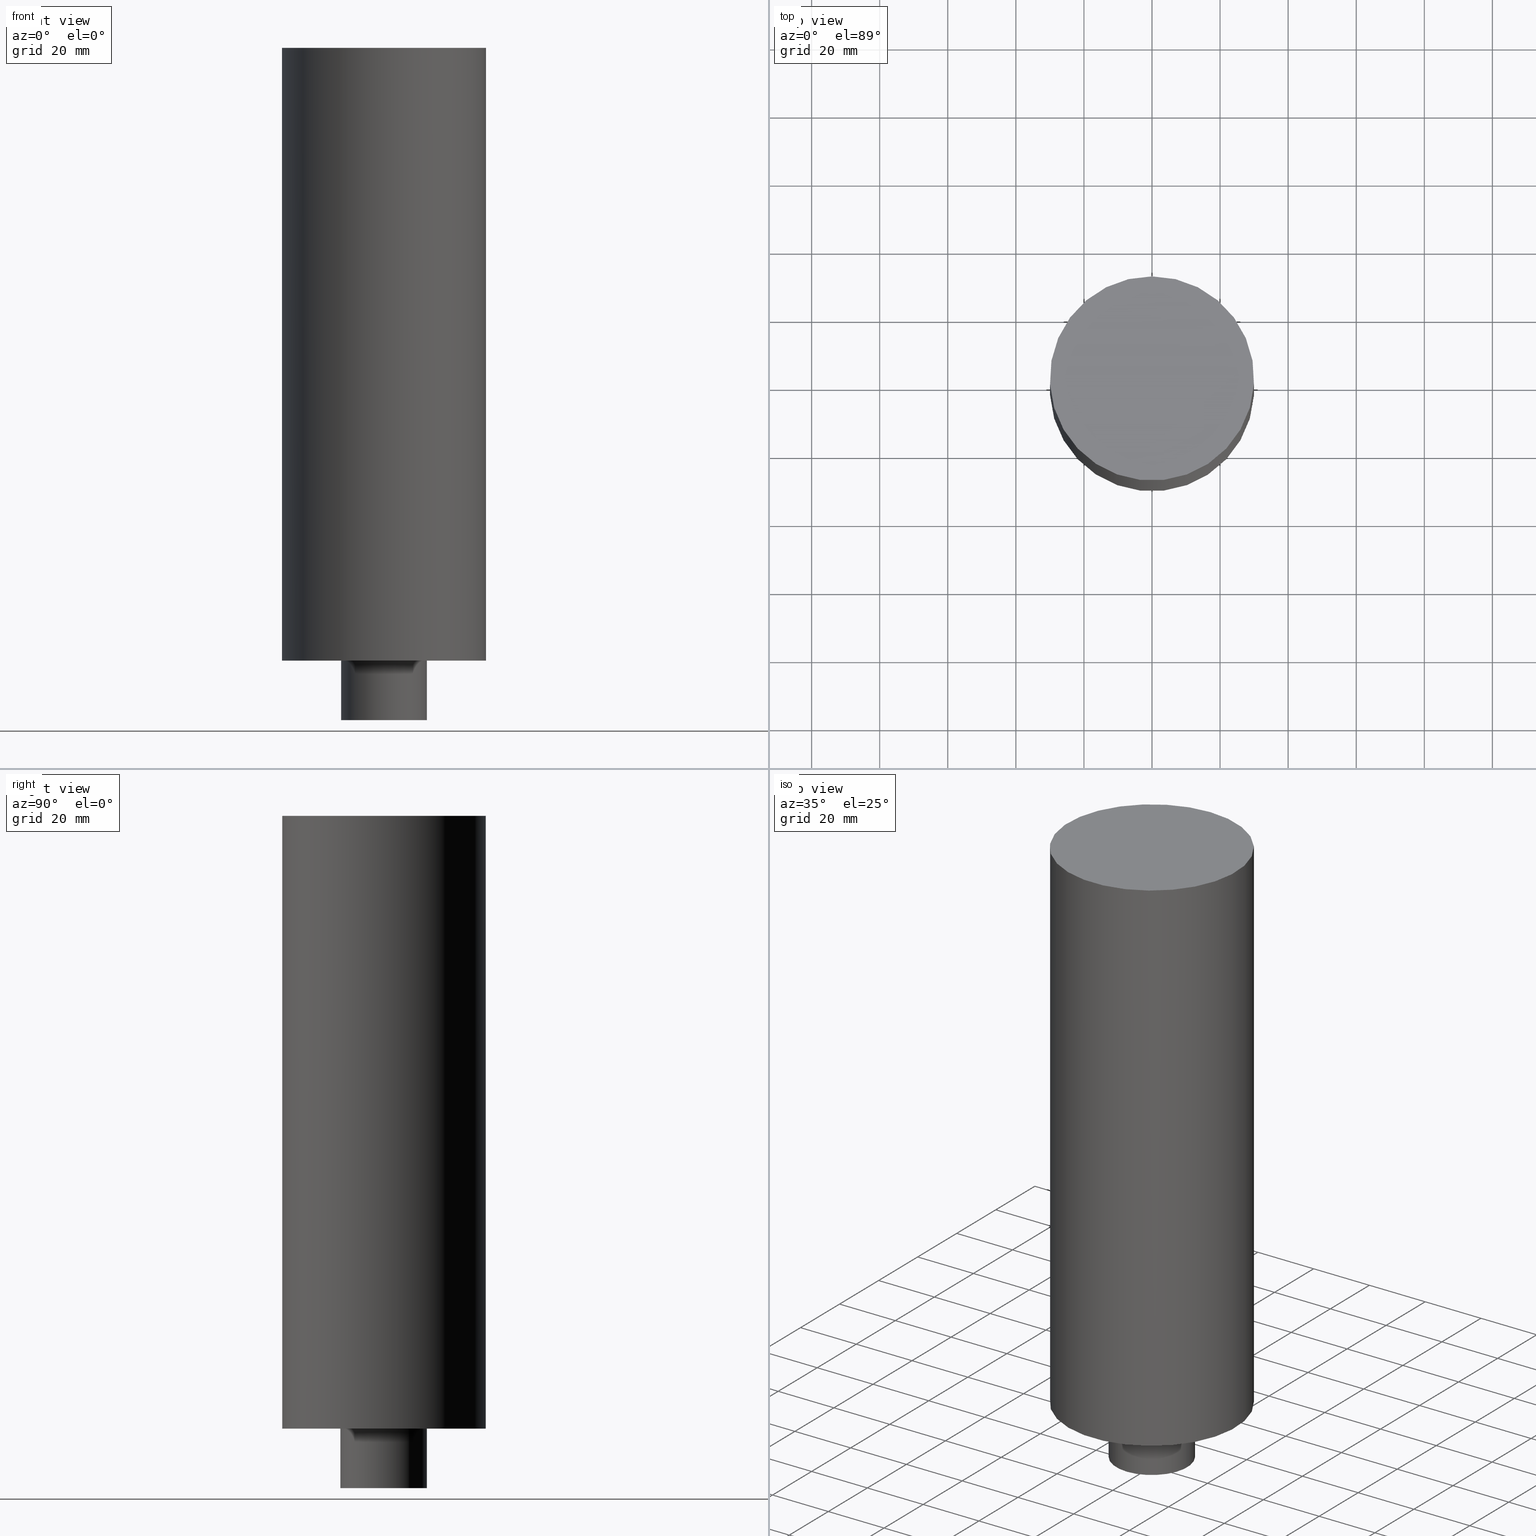
[diagram: canonical four-view strip — front | top / right | iso, engineering-drawing reading convention]
A machine part, canonical four-view strip (front | top / right | iso — engineering-drawing reading convention). The complete STEP part file that produces these views, byte-faithful:
ISO-10303-21;
HEADER;
FILE_DESCRIPTION((''),'1');
FILE_NAME('V:/90_\X2\53D65F9730C730FC30BF\X0\/00_\X2\6DE18DEF30C730FC30BF\X0\/ALL/BCV-BKUS\X2\FF76FF80FF9BFF78FF9E752852A05DE556F3\X0\201801/BCV50-SDF/SDF36-SMC1.000DP-60-180.stp','2018-02-01T01:30:07',(''),(''),'Spatial Interop R21 SP3','Kubotek KeyCreator 2011 V10.0.2 (22737)',' ');
FILE_SCHEMA(('automotive_design'));
ENDSEC;
DATA;
#1=MECHANICAL_DESIGN_GEOMETRIC_PRESENTATION_REPRESENTATION(' ',(#10,#11,#12,#13,#14,#15,#16,#17,#18,#19),#6);
#2=PRODUCT_DEFINITION_CONTEXT('',#20,'design');
#3=APPLICATION_PROTOCOL_DEFINITION('INTERNATIONAL STANDARD','automotive_design',1994,#20);
#4=PRODUCT_CATEGORY_RELATIONSHIP('NONE','NONE',#21,#22);
#5=SHAPE_DEFINITION_REPRESENTATION(#23,#24);
#6= (GEOMETRIC_REPRESENTATION_CONTEXT(3)GLOBAL_UNCERTAINTY_ASSIGNED_CONTEXT((#27))GLOBAL_UNIT_ASSIGNED_CONTEXT((#29,#30,#31))REPRESENTATION_CONTEXT('NONE','WORKSPACE'));
#10=STYLED_ITEM('',(#33,#34),#35);
#11=STYLED_ITEM('',(#36,#37),#38);
#12=STYLED_ITEM('',(#39,#40),#41);
#13=STYLED_ITEM('',(#42),#43);
#14=STYLED_ITEM('',(#44),#45);
#15=STYLED_ITEM('',(#46),#47);
#16=STYLED_ITEM('',(#48,#49),#50);
#17=STYLED_ITEM('',(#51),#52);
#18=STYLED_ITEM('',(#53,#54),#55);
#19=STYLED_ITEM('',(#56,#57),#58);
#20=APPLICATION_CONTEXT(' ');
#21=PRODUCT_CATEGORY('part','NONE');
#22=PRODUCT_RELATED_PRODUCT_CATEGORY('detail',' ',(#59));
#23=PRODUCT_DEFINITION_SHAPE('NONE','NONE',#60);
#24=ADVANCED_BREP_SHAPE_REPRESENTATION('Unnamed[1]',(#58,#61),#6);
#27=UNCERTAINTY_MEASURE_WITH_UNIT(LENGTH_MEASURE(1.0E-006),#29,'','');
#29= (CONVERSION_BASED_UNIT('MILLIMETRE',#64)LENGTH_UNIT()NAMED_UNIT(#67));
#30= (NAMED_UNIT(#69)PLANE_ANGLE_UNIT()SI_UNIT($,.RADIAN.));
#31= (NAMED_UNIT(#69)SOLID_ANGLE_UNIT()SI_UNIT($,.STERADIAN.));
#33=PRESENTATION_STYLE_ASSIGNMENT((#75));
#34=PRESENTATION_STYLE_ASSIGNMENT((#76));
#35=ADVANCED_FACE('Unnamed[1]',(#77),#78,.T.);
#36=PRESENTATION_STYLE_ASSIGNMENT((#79));
#37=PRESENTATION_STYLE_ASSIGNMENT((#80));
#38=ADVANCED_FACE('Unnamed[1]',(#81),#82,.T.);
#39=PRESENTATION_STYLE_ASSIGNMENT((#83));
#40=PRESENTATION_STYLE_ASSIGNMENT((#84));
#41=ADVANCED_FACE('Unnamed[1]',(#85,#86),#87,.T.);
#42=PRESENTATION_STYLE_ASSIGNMENT((#88));
#43=EDGE_CURVE('Unnamed[1]',#89,#89,#90,.T.);
#44=PRESENTATION_STYLE_ASSIGNMENT((#91));
#45=EDGE_CURVE('Unnamed[1]',#92,#92,#93,.T.);
#46=PRESENTATION_STYLE_ASSIGNMENT((#94));
#47=EDGE_CURVE('Unnamed[1]',#95,#95,#96,.T.);
#48=PRESENTATION_STYLE_ASSIGNMENT((#97));
#49=PRESENTATION_STYLE_ASSIGNMENT((#98));
#50=ADVANCED_FACE('Unnamed[1]',(#99,#100),#101,.T.);
#51=PRESENTATION_STYLE_ASSIGNMENT((#102));
#52=EDGE_CURVE('Unnamed[1]',#103,#103,#104,.T.);
#53=PRESENTATION_STYLE_ASSIGNMENT((#105));
#54=PRESENTATION_STYLE_ASSIGNMENT((#106));
#55=ADVANCED_FACE('Unnamed[1]',(#107,#108),#109,.T.);
#56=PRESENTATION_STYLE_ASSIGNMENT((#110));
#57=PRESENTATION_STYLE_ASSIGNMENT((#111));
#58=MANIFOLD_SOLID_BREP('Unnamed[1]',#112);
#59=PRODUCT('Unnamed[1]','Unnamed[1]','PART-Unnamed[1]-DESC',(#113));
#60=PRODUCT_DEFINITION('NONE','NONE',#114,#2);
#61=AXIS2_PLACEMENT_3D('',#115,#116,#117);
#64=LENGTH_MEASURE_WITH_UNIT(LENGTH_MEASURE(1.0),#118);
#67=DIMENSIONAL_EXPONENTS(1.0,0.0,0.0,0.0,0.0,0.0,0.0);
#69=DIMENSIONAL_EXPONENTS(0.0,0.0,0.0,0.0,0.0,0.0,0.0);
#75=SURFACE_STYLE_USAGE(.BOTH.,#119);
#76=CURVE_STYLE('',#120,POSITIVE_LENGTH_MEASURE(1000.0),#121);
#77=FACE_OUTER_BOUND('',#122,.T.);
#78=PLANE('',#123);
#79=SURFACE_STYLE_USAGE(.BOTH.,#124);
#80=CURVE_STYLE('',#125,POSITIVE_LENGTH_MEASURE(1000.0),#126);
#81=FACE_OUTER_BOUND('',#127,.T.);
#82=PLANE('',#128);
#83=SURFACE_STYLE_USAGE(.BOTH.,#129);
#84=CURVE_STYLE('',#130,POSITIVE_LENGTH_MEASURE(1000.0),#131);
#85=FACE_BOUND('',#132,.T.);
#86=FACE_BOUND('',#133,.T.);
#87=CYLINDRICAL_SURFACE('',#134,12.7);
#88=CURVE_STYLE('',#135,POSITIVE_LENGTH_MEASURE(1000.0),#136);
#89=VERTEX_POINT('',#137);
#90=CIRCLE('',#138,30.0);
#91=CURVE_STYLE('',#139,POSITIVE_LENGTH_MEASURE(1000.0),#140);
#92=VERTEX_POINT('',#141);
#93=CIRCLE('',#142,12.7);
#94=CURVE_STYLE('',#143,POSITIVE_LENGTH_MEASURE(1000.0),#144);
#95=VERTEX_POINT('',#145);
#96=CIRCLE('',#146,30.0);
#97=SURFACE_STYLE_USAGE(.BOTH.,#147);
#98=CURVE_STYLE('',#148,POSITIVE_LENGTH_MEASURE(1000.0),#149);
#99=FACE_BOUND('',#150,.T.);
#100=FACE_BOUND('',#151,.T.);
#101=CYLINDRICAL_SURFACE('',#152,30.0);
#102=CURVE_STYLE('',#153,POSITIVE_LENGTH_MEASURE(1000.0),#154);
#103=VERTEX_POINT('',#155);
#104=CIRCLE('',#156,12.7);
#105=SURFACE_STYLE_USAGE(.BOTH.,#157);
#106=CURVE_STYLE('',#158,POSITIVE_LENGTH_MEASURE(1000.0),#159);
#107=FACE_OUTER_BOUND('',#160,.T.);
#108=FACE_BOUND('',#161,.T.);
#109=PLANE('',#162);
#110=SURFACE_STYLE_USAGE(.BOTH.,#163);
#111=CURVE_STYLE('',#164,POSITIVE_LENGTH_MEASURE(1000.0),#165);
#112=CLOSED_SHELL('',(#38,#41,#55,#50,#35));
#113=PRODUCT_CONTEXT('',#20,'mechanical');
#114=PRODUCT_DEFINITION_FORMATION_WITH_SPECIFIED_SOURCE(' ','NONE',#59,.NOT_KNOWN.);
#115=CARTESIAN_POINT('',(0.0,0.0,0.0));
#116=DIRECTION('',(0.0,0.0,1.0));
#117=DIRECTION('',(1.0,0.0,0.0));
#118= (NAMED_UNIT(#67)LENGTH_UNIT()SI_UNIT(.MILLI.,.METRE.));
#119=SURFACE_SIDE_STYLE('',(#167));
#120=DRAUGHTING_PRE_DEFINED_CURVE_FONT('continuous');
#121=COLOUR_RGB('',0.0,1.0,0.0);
#122=EDGE_LOOP('',(#168));
#123=AXIS2_PLACEMENT_3D('',#169,#170,#171);
#124=SURFACE_SIDE_STYLE('',(#172));
#125=DRAUGHTING_PRE_DEFINED_CURVE_FONT('continuous');
#126=COLOUR_RGB('',0.0,1.0,0.0);
#127=EDGE_LOOP('',(#173));
#128=AXIS2_PLACEMENT_3D('',#174,#175,#176);
#129=SURFACE_SIDE_STYLE('',(#177));
#130=DRAUGHTING_PRE_DEFINED_CURVE_FONT('continuous');
#131=COLOUR_RGB('',0.0,1.0,0.0);
#132=EDGE_LOOP('',(#178));
#133=EDGE_LOOP('',(#179));
#134=AXIS2_PLACEMENT_3D('',#180,#181,#182);
#135=DRAUGHTING_PRE_DEFINED_CURVE_FONT('continuous');
#136=COLOUR_RGB('',0.0,1.0,0.0);
#137=CARTESIAN_POINT('',(1.37054922468967E-030,30.0,-2.47477690329619E-014));
#138=AXIS2_PLACEMENT_3D('',#183,#184,#185);
#139=DRAUGHTING_PRE_DEFINED_CURVE_FONT('continuous');
#140=COLOUR_RGB('',0.0,1.0,0.0);
#141=CARTESIAN_POINT('',(1.20933871415801E-014,12.7,-197.5));
#142=AXIS2_PLACEMENT_3D('',#186,#187,#188);
#143=DRAUGHTING_PRE_DEFINED_CURVE_FONT('continuous');
#144=COLOUR_RGB('',0.0,1.0,0.0);
#145=CARTESIAN_POINT('',(1.10218211923262E-014,30.0,-180.000000000001));
#146=AXIS2_PLACEMENT_3D('',#189,#190,#191);
#147=SURFACE_SIDE_STYLE('',(#192));
#148=DRAUGHTING_PRE_DEFINED_CURVE_FONT('continuous');
#149=COLOUR_RGB('',0.0,1.0,0.0);
#150=EDGE_LOOP('',(#193));
#151=EDGE_LOOP('',(#194));
#152=AXIS2_PLACEMENT_3D('',#195,#196,#197);
#153=DRAUGHTING_PRE_DEFINED_CURVE_FONT('continuous');
#154=COLOUR_RGB('',0.0,1.0,0.0);
#155=CARTESIAN_POINT('',(1.10218211923262E-014,12.7,-180.0));
#156=AXIS2_PLACEMENT_3D('',#198,#199,#200);
#157=SURFACE_SIDE_STYLE('',(#201));
#158=DRAUGHTING_PRE_DEFINED_CURVE_FONT('continuous');
#159=COLOUR_RGB('',0.0,1.0,0.0);
#160=EDGE_LOOP('',(#202));
#161=EDGE_LOOP('',(#203));
#162=AXIS2_PLACEMENT_3D('',#204,#205,#206);
#163=SURFACE_SIDE_STYLE('',(#207));
#164=DRAUGHTING_PRE_DEFINED_CURVE_FONT('continuous');
#165=COLOUR_RGB('',0.0,1.0,0.0);
#167=SURFACE_STYLE_FILL_AREA(#208);
#168=ORIENTED_EDGE('',*,*,#43,.T.);
#169=CARTESIAN_POINT('',(1.3373990328908E-030,15.0,-2.3023884516481E-014));
#170=DIRECTION('',(-6.12323399573677E-017,1.14925634432065E-016,1.0));
#171=DIRECTION('',(2.21001278659132E-033,1.0,-1.14925634432065E-016));
#172=SURFACE_STYLE_FILL_AREA(#209);
#173=ORIENTED_EDGE('',*,*,#45,.F.);
#174=CARTESIAN_POINT('',(1.20933871415801E-014,6.35000000000002,-197.5));
#175=DIRECTION('',(6.12323399573677E-017,1.22464679914735E-016,-1.0));
#176=DIRECTION('',(1.23259516440783E-032,-1.0,-1.22464679914735E-016));
#177=SURFACE_STYLE_FILL_AREA(#210);
#178=ORIENTED_EDGE('',*,*,#52,.F.);
#179=ORIENTED_EDGE('',*,*,#45,.T.);
#180=CARTESIAN_POINT('',(1.15576041669532E-014,2.31152083339063E-014,-188.75));
#181=DIRECTION('',(-6.12323399573677E-017,-1.2246467991474E-016,1.0));
#182=DIRECTION('',(-1.2325951644079E-032,1.0,1.2246467991474E-016));
#183=CARTESIAN_POINT('',(1.74032777401202E-030,3.48065554802404E-030,-2.8421709430404E-014));
#184=DIRECTION('',(-6.12323399573677E-017,-1.22464679914747E-016,1.0));
#185=DIRECTION('',(-1.23259516440783E-032,1.0,1.22464679914747E-016));
#186=CARTESIAN_POINT('',(1.20933871415801E-014,2.41867742831602E-014,-197.5));
#187=DIRECTION('',(-6.12323399573677E-017,-1.2246467991474E-016,1.0));
#188=DIRECTION('',(-1.2325951644079E-032,1.0,1.2246467991474E-016));
#189=CARTESIAN_POINT('',(1.10218211923262E-014,2.20436423846524E-014,-180.000000000001));
#190=DIRECTION('',(-6.12323399573677E-017,-1.22464679914747E-016,1.0));
#191=DIRECTION('',(-1.23259516440783E-032,1.0,1.22464679914747E-016));
#192=SURFACE_STYLE_FILL_AREA(#211);
#193=ORIENTED_EDGE('',*,*,#43,.F.);
#194=ORIENTED_EDGE('',*,*,#47,.T.);
#195=CARTESIAN_POINT('',(5.51091059616311E-015,1.10218211923262E-014,-90.0000000000003));
#196=DIRECTION('',(-6.12323399573677E-017,-1.22464679914747E-016,1.0));
#197=DIRECTION('',(-1.23259516440783E-032,1.0,1.22464679914747E-016));
#198=CARTESIAN_POINT('',(1.10218211923262E-014,2.20436423846524E-014,-180.0));
#199=DIRECTION('',(-6.12323399573677E-017,-1.2246467991474E-016,1.0));
#200=DIRECTION('',(-1.2325951644079E-032,1.0,1.2246467991474E-016));
#201=SURFACE_STYLE_FILL_AREA(#212);
#202=ORIENTED_EDGE('',*,*,#47,.F.);
#203=ORIENTED_EDGE('',*,*,#52,.T.);
#204=CARTESIAN_POINT('',(1.10218211923262E-014,21.35,-180.0));
#205=DIRECTION('',(6.12323399573677E-017,-2.28777626048053E-014,-1.0));
#206=DIRECTION('',(-1.39603178455062E-030,-1.0,2.28777626048053E-014));
#207=SURFACE_STYLE_FILL_AREA(#213);
#208=FILL_AREA_STYLE('',(#214));
#209=FILL_AREA_STYLE('',(#215));
#210=FILL_AREA_STYLE('',(#216));
#211=FILL_AREA_STYLE('',(#217));
#212=FILL_AREA_STYLE('',(#218));
#213=FILL_AREA_STYLE('',(#219));
#214=FILL_AREA_STYLE_COLOUR('',#220);
#215=FILL_AREA_STYLE_COLOUR('',#221);
#216=FILL_AREA_STYLE_COLOUR('',#222);
#217=FILL_AREA_STYLE_COLOUR('',#223);
#218=FILL_AREA_STYLE_COLOUR('',#224);
#219=FILL_AREA_STYLE_COLOUR('',#225);
#220=COLOUR_RGB('',0.0,1.0,0.0);
#221=COLOUR_RGB('',0.0,1.0,0.0);
#222=COLOUR_RGB('',0.0,1.0,0.0);
#223=COLOUR_RGB('',0.0,1.0,0.0);
#224=COLOUR_RGB('',0.0,1.0,0.0);
#225=COLOUR_RGB('',0.0,1.0,0.0);
ENDSEC;
END-ISO-10303-21;
